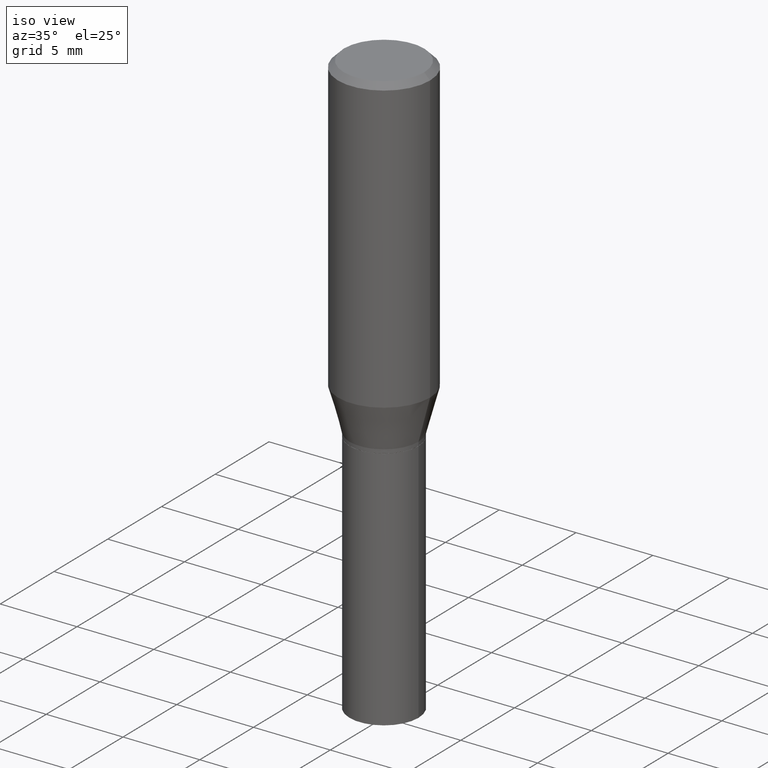
[diagram: clean part render]
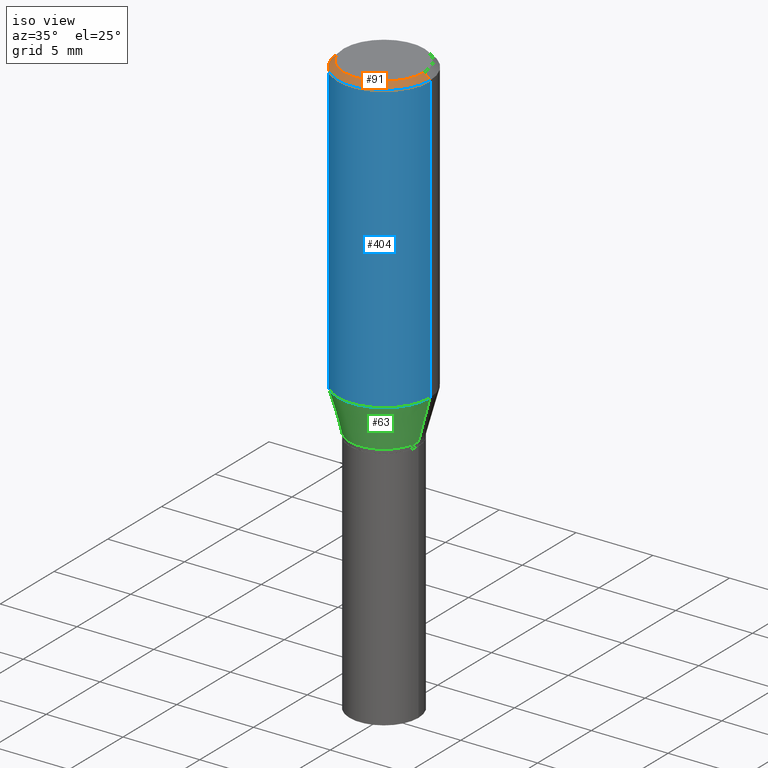
[diagram: same view with three faces highlighted in distinct colors, each labeled with its STEP entity id]
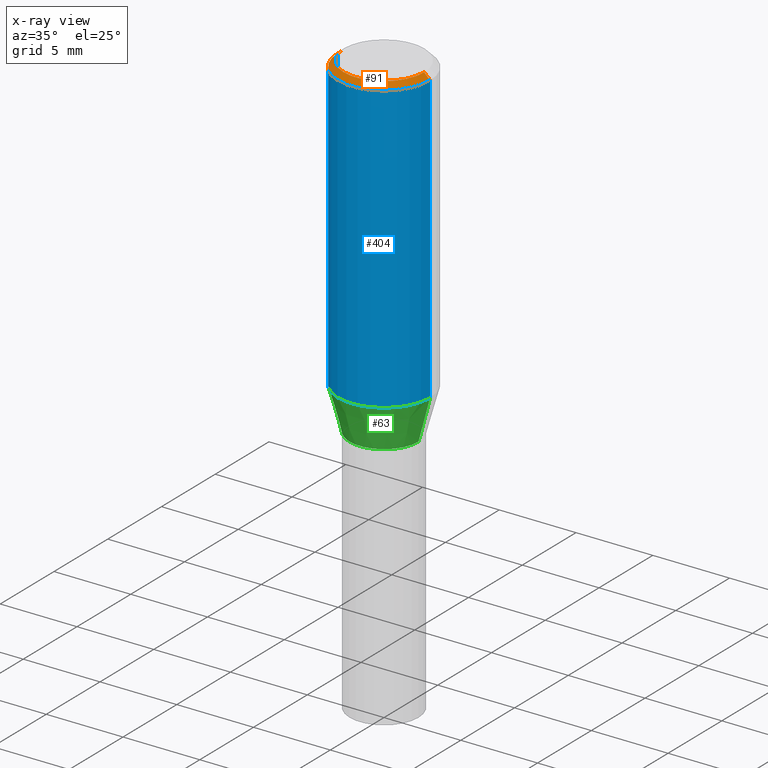
[diagram: x-ray of the same camera — body ghosted, the three highlighted faces saturated]
A machine part, iso view with three faces highlighted in distinct colors.
The next image is the same camera in x-ray (body ghosted, the three faces saturated) — at least one of them is partly hidden behind the body in this view.
Their STEP definitions:

[orange] entity #91 — the highlighted conical surface has half-angle 45 deg.
#2 = AXIS2_PLACEMENT_3D ( 'NONE', #188, #145, #253 ) ;
#13 = EDGE_CURVE ( 'NONE', #273, #16, #123, .T. ) ;
#16 = VERTEX_POINT ( 'NONE', #306 ) ;
#25 = VERTEX_POINT ( 'NONE', #443 ) ;
#64 = ORIENTED_EDGE ( 'NONE', *, *, #113, .F. ) ;
#68 = CARTESIAN_POINT ( 'NONE',  ( 3.668203209277705088E-31, -5.237222008264718399E-17, -0.01499999999999999944 ) ) ;
#84 = LINE ( 'NONE', #117, #392 ) ;
#91 = ADVANCED_FACE ( 'NONE', ( #240 ), #110, .T. ) ;
#96 = VECTOR ( 'NONE', #356, 39.37007874015748854 ) ;
#110 = CONICAL_SURFACE ( 'NONE', #363, 0.1180999999999999966, 0.7853981633974543852 ) ;
#113 = EDGE_CURVE ( 'NONE', #441, #16, #424, .T. ) ;
#116 = CARTESIAN_POINT ( 'NONE',  ( 3.668203209277705088E-31, -5.237222008264718399E-17, -0.01499999999999999944 ) ) ;
#117 = CARTESIAN_POINT ( 'NONE',  ( -0.1180999999999999966, 7.723156721521009862E-16, -0.01499999999999999944 ) ) ;
#123 = CIRCLE ( 'NONE', #314, 0.1180999999999999966 ) ;
#145 = DIRECTION ( 'NONE',  ( -2.445468806185136597E-29, 3.491481338843145583E-15, 1.000000000000000000 ) ) ;
#188 = CARTESIAN_POINT ( 'NONE',  ( 4.647400995173613138E-45, -6.635256932220833331E-31, -1.900413116462290932E-16 ) ) ;
#198 = DIRECTION ( 'NONE',  ( 1.000000000000000000, -6.982962677686266711E-15, 0.000000000000000000 ) ) ;
#204 = EDGE_LOOP ( 'NONE', ( #64, #338, #266, #453 ) ) ;
#209 = DIRECTION ( 'NONE',  ( -1.000000000000000000, 6.982962677686266711E-15, 0.000000000000000000 ) ) ;
#240 = FACE_OUTER_BOUND ( 'NONE', #204, .T. ) ;
#253 = DIRECTION ( 'NONE',  ( 1.000000000000000000, -6.982962677686265922E-15, 4.883331232093008327E-29 ) ) ;
#260 = CIRCLE ( 'NONE', #2, 0.1031000000000000111 ) ;
#266 = ORIENTED_EDGE ( 'NONE', *, *, #425, .T. ) ;
#273 = VERTEX_POINT ( 'NONE', #391 ) ;
#306 = CARTESIAN_POINT ( 'NONE',  ( 0.1180999999999999966, -8.770601123173952432E-16, -0.01499999999999999944 ) ) ;
#314 = AXIS2_PLACEMENT_3D ( 'NONE', #116, #447, #198 ) ;
#338 = ORIENTED_EDGE ( 'NONE', *, *, #368, .F. ) ;
#346 = DIRECTION ( 'NONE',  ( -0.7071067811865516806, 2.468850131082300842E-15, -0.7071067811865431318 ) ) ;
#356 = DIRECTION ( 'NONE',  ( 0.7071067811865516806, -7.319954787623268667E-15, -0.7071067811865431318 ) ) ;
#363 = AXIS2_PLACEMENT_3D ( 'NONE', #68, #457, #209 ) ;
#368 = EDGE_CURVE ( 'NONE', #25, #441, #260, .T. ) ;
#391 = CARTESIAN_POINT ( 'NONE',  ( -0.1180999999999999966, -4.963484990620821929E-16, -0.01499999999999999944 ) ) ;
#392 = VECTOR ( 'NONE', #346, 39.37007874015748854 ) ;
#401 = CARTESIAN_POINT ( 'NONE',  ( 0.1180999999999999966, -8.625970336194650129E-16, -0.01499999999999999944 ) ) ;
#409 = CARTESIAN_POINT ( 'NONE',  ( 0.1031000000000000111, -7.849571885948552706E-16, -1.900413116462238423E-16 ) ) ;
#424 = LINE ( 'NONE', #401, #96 ) ;
#425 = EDGE_CURVE ( 'NONE', #25, #273, #84, .T. ) ;
#441 = VERTEX_POINT ( 'NONE', #409 ) ;
#443 = CARTESIAN_POINT ( 'NONE',  ( -0.1031000000000000111, 7.461295621107772493E-16, -1.900413116462341961E-16 ) ) ;
#447 = DIRECTION ( 'NONE',  ( -2.445468806185136597E-29, 3.491481338843145583E-15, 1.000000000000000000 ) ) ;
#453 = ORIENTED_EDGE ( 'NONE', *, *, #13, .T. ) ;
#457 = DIRECTION ( 'NONE',  ( 2.445468806185136597E-29, -3.491481338843145583E-15, -1.000000000000000000 ) ) ;

[blue] entity #404 — the highlighted cylindrical surface (partial cylindrical patch) has radius 2.9997 mm, axis along (-0, 0, 1).
#4 = DIRECTION ( 'NONE',  ( -2.445468806185136597E-29, 3.491481338843145583E-15, 1.000000000000000000 ) ) ;
#13 = EDGE_CURVE ( 'NONE', #273, #16, #123, .T. ) ;
#16 = VERTEX_POINT ( 'NONE', #306 ) ;
#40 = LINE ( 'NONE', #177, #426 ) ;
#43 = CYLINDRICAL_SURFACE ( 'NONE', #45, 0.1180999999999999966 ) ;
#45 = AXIS2_PLACEMENT_3D ( 'NONE', #187, #4, #221 ) ;
#57 = VERTEX_POINT ( 'NONE', #269 ) ;
#76 = CIRCLE ( 'NONE', #340, 0.1180999999999999966 ) ;
#79 = FACE_OUTER_BOUND ( 'NONE', #159, .T. ) ;
#80 = VECTOR ( 'NONE', #288, 39.37007874015748143 ) ;
#98 = LINE ( 'NONE', #182, #80 ) ;
#116 = CARTESIAN_POINT ( 'NONE',  ( 3.668203209277705088E-31, -5.237222008264718399E-17, -0.01499999999999999944 ) ) ;
#123 = CIRCLE ( 'NONE', #314, 0.1180999999999999966 ) ;
#138 = ORIENTED_EDGE ( 'NONE', *, *, #157, .T. ) ;
#139 = CARTESIAN_POINT ( 'NONE',  ( 1.834112612126108016E-29, -2.618626719906874095E-15, -0.7500045011767182412 ) ) ;
#157 = EDGE_CURVE ( 'NONE', #57, #16, #40, .T. ) ;
#159 = EDGE_LOOP ( 'NONE', ( #416, #263, #138, #336 ) ) ;
#162 = EDGE_CURVE ( 'NONE', #192, #273, #98, .T. ) ;
#175 = EDGE_CURVE ( 'NONE', #192, #57, #76, .T. ) ;
#177 = CARTESIAN_POINT ( 'NONE',  ( 0.1180999999999999966, -8.246878922347480654E-16, 5.758764772215000440E-30 ) ) ;
#182 = CARTESIAN_POINT ( 'NONE',  ( -0.1180999999999999966, 8.391509709326782957E-16, -5.809262341591043784E-30 ) ) ;
#184 = DIRECTION ( 'NONE',  ( -2.445468806185136597E-29, 3.491481338843145583E-15, 1.000000000000000000 ) ) ;
#187 = CARTESIAN_POINT ( 'NONE',  ( 0.000000000000000000, 0.000000000000000000, 0.000000000000000000 ) ) ;
#192 = VERTEX_POINT ( 'NONE', #318 ) ;
#198 = DIRECTION ( 'NONE',  ( 1.000000000000000000, -6.982962677686266711E-15, 0.000000000000000000 ) ) ;
#221 = DIRECTION ( 'NONE',  ( 1.000000000000000000, -6.982962677686266711E-15, 4.876176775795936353E-29 ) ) ;
#263 = ORIENTED_EDGE ( 'NONE', *, *, #175, .T. ) ;
#269 = CARTESIAN_POINT ( 'NONE',  ( 0.1180999999999999966, -3.443314612141622358E-15, -0.7500045011767182412 ) ) ;
#273 = VERTEX_POINT ( 'NONE', #391 ) ;
#279 = DIRECTION ( 'NONE',  ( -2.445468806185136877E-29, 3.491481338843145188E-15, 1.000000000000000000 ) ) ;
#288 = DIRECTION ( 'NONE',  ( -2.445468806185136877E-29, 3.491481338843145188E-15, 1.000000000000000000 ) ) ;
#306 = CARTESIAN_POINT ( 'NONE',  ( 0.1180999999999999966, -8.770601123173952432E-16, -0.01499999999999999944 ) ) ;
#314 = AXIS2_PLACEMENT_3D ( 'NONE', #116, #447, #198 ) ;
#318 = CARTESIAN_POINT ( 'NONE',  ( -0.1180999999999999966, -1.779475748974195504E-15, -0.7500045011767182412 ) ) ;
#336 = ORIENTED_EDGE ( 'NONE', *, *, #13, .F. ) ;
#340 = AXIS2_PLACEMENT_3D ( 'NONE', #139, #184, #466 ) ;
#391 = CARTESIAN_POINT ( 'NONE',  ( -0.1180999999999999966, -4.963484990620821929E-16, -0.01499999999999999944 ) ) ;
#404 = ADVANCED_FACE ( 'NONE', ( #79 ), #43, .T. ) ;
#416 = ORIENTED_EDGE ( 'NONE', *, *, #162, .F. ) ;
#426 = VECTOR ( 'NONE', #279, 39.37007874015748143 ) ;
#447 = DIRECTION ( 'NONE',  ( -2.445468806185136597E-29, 3.491481338843145583E-15, 1.000000000000000000 ) ) ;
#466 = DIRECTION ( 'NONE',  ( 1.000000000000000000, -6.982962677686265133E-15, 0.000000000000000000 ) ) ;

[green] entity #63 — the highlighted conical surface has half-angle 15 deg.
#17 = VERTEX_POINT ( 'NONE', #122 ) ;
#19 = ORIENTED_EDGE ( 'NONE', *, *, #33, .F. ) ;
#30 = DIRECTION ( 'NONE',  ( 1.000000000000000000, -6.982962677686266711E-15, 0.000000000000000000 ) ) ;
#33 = EDGE_CURVE ( 'NONE', #17, #192, #161, .T. ) ;
#37 = EDGE_CURVE ( 'NONE', #165, #57, #420, .T. ) ;
#48 = ORIENTED_EDGE ( 'NONE', *, *, #37, .T. ) ;
#57 = VERTEX_POINT ( 'NONE', #269 ) ;
#63 = ADVANCED_FACE ( 'NONE', ( #90 ), #147, .T. ) ;
#76 = CIRCLE ( 'NONE', #340, 0.1180999999999999966 ) ;
#90 = FACE_OUTER_BOUND ( 'NONE', #375, .T. ) ;
#119 = DIRECTION ( 'NONE',  ( 0.2588190451025210170, 1.565188264969624531E-15, 0.9659258262890682012 ) ) ;
#122 = CARTESIAN_POINT ( 'NONE',  ( -0.08859999999999995657, -2.076478992314868500E-15, -0.8601000000000001977 ) ) ;
#139 = CARTESIAN_POINT ( 'NONE',  ( 1.834112612126108016E-29, -2.618626719906874095E-15, -0.7500045011767182412 ) ) ;
#142 = AXIS2_PLACEMENT_3D ( 'NONE', #325, #361, #30 ) ;
#147 = CONICAL_SURFACE ( 'NONE', #327, 0.08859999999999995657, 0.2617993877991496854 ) ;
#152 = EDGE_CURVE ( 'NONE', #17, #165, #399, .T. ) ;
#161 = LINE ( 'NONE', #309, #331 ) ;
#165 = VERTEX_POINT ( 'NONE', #428 ) ;
#175 = EDGE_CURVE ( 'NONE', #192, #57, #76, .T. ) ;
#179 = VECTOR ( 'NONE', #119, 39.37007874015748143 ) ;
#184 = DIRECTION ( 'NONE',  ( -2.445468806185136597E-29, 3.491481338843145583E-15, 1.000000000000000000 ) ) ;
#192 = VERTEX_POINT ( 'NONE', #318 ) ;
#269 = CARTESIAN_POINT ( 'NONE',  ( 0.1180999999999999966, -3.443314612141622358E-15, -0.7500045011767182412 ) ) ;
#303 = DIRECTION ( 'NONE',  ( 1.000000000000000000, -6.982962677686266711E-15, 0.000000000000000000 ) ) ;
#309 = CARTESIAN_POINT ( 'NONE',  ( -0.08859999999999995657, -2.373482235655541495E-15, -0.8601000000000001977 ) ) ;
#315 = CARTESIAN_POINT ( 'NONE',  ( 2.103347720199836549E-29, -3.003023099538990346E-15, -0.8601000000000001977 ) ) ;
#318 = CARTESIAN_POINT ( 'NONE',  ( -0.1180999999999999966, -1.779475748974195504E-15, -0.7500045011767182412 ) ) ;
#325 = CARTESIAN_POINT ( 'NONE',  ( 2.103347720199836549E-29, -3.003023099538990346E-15, -0.8601000000000001977 ) ) ;
#327 = AXIS2_PLACEMENT_3D ( 'NONE', #315, #456, #303 ) ;
#331 = VECTOR ( 'NONE', #449, 39.37007874015748143 ) ;
#340 = AXIS2_PLACEMENT_3D ( 'NONE', #139, #184, #466 ) ;
#347 = ORIENTED_EDGE ( 'NONE', *, *, #175, .F. ) ;
#361 = DIRECTION ( 'NONE',  ( -2.445468806185136597E-29, 3.491481338843145583E-15, 1.000000000000000000 ) ) ;
#375 = EDGE_LOOP ( 'NONE', ( #19, #414, #48, #347 ) ) ;
#382 = CARTESIAN_POINT ( 'NONE',  ( 0.08859999999999995657, -3.621713592781993299E-15, -0.8601000000000001977 ) ) ;
#399 = CIRCLE ( 'NONE', #142, 0.08859999999999995657 ) ;
#414 = ORIENTED_EDGE ( 'NONE', *, *, #152, .T. ) ;
#420 = LINE ( 'NONE', #382, #179 ) ;
#428 = CARTESIAN_POINT ( 'NONE',  ( 0.08859999999999995657, -3.621713592781993299E-15, -0.8601000000000001977 ) ) ;
#449 = DIRECTION ( 'NONE',  ( -0.2588190451025210170, 5.211531920934547886E-15, 0.9659258262890682012 ) ) ;
#456 = DIRECTION ( 'NONE',  ( -2.445468806185136597E-29, 3.491481338843145583E-15, 1.000000000000000000 ) ) ;
#466 = DIRECTION ( 'NONE',  ( 1.000000000000000000, -6.982962677686265133E-15, 0.000000000000000000 ) ) ;